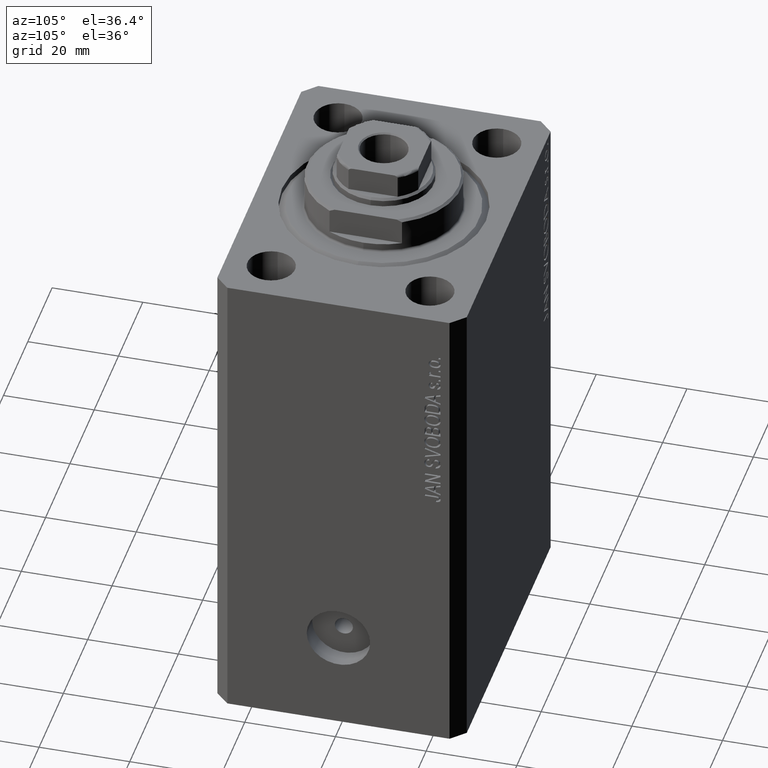
[diagram: clean part render]
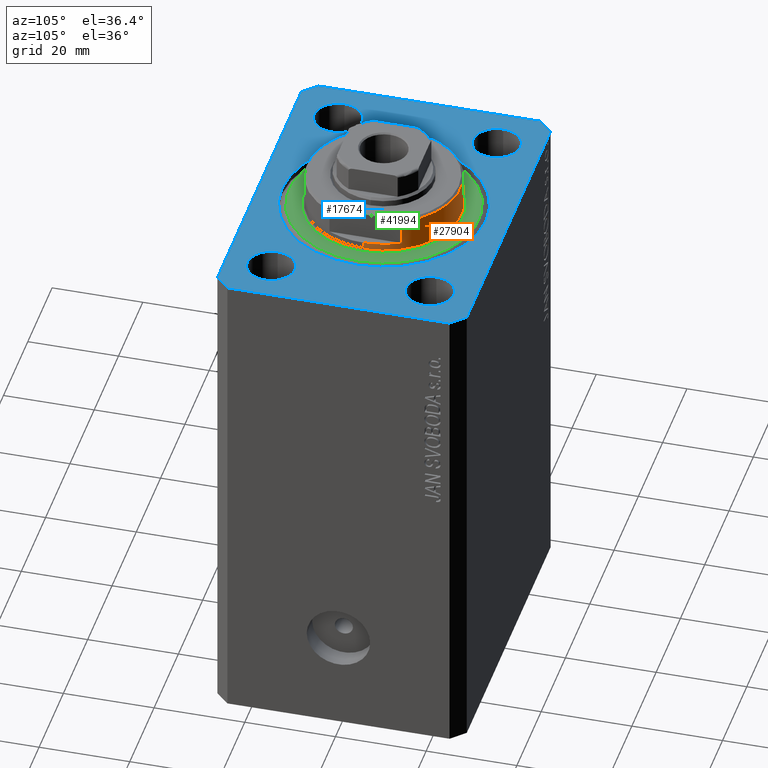
[diagram: same view with three faces highlighted in distinct colors, each labeled with its STEP entity id]
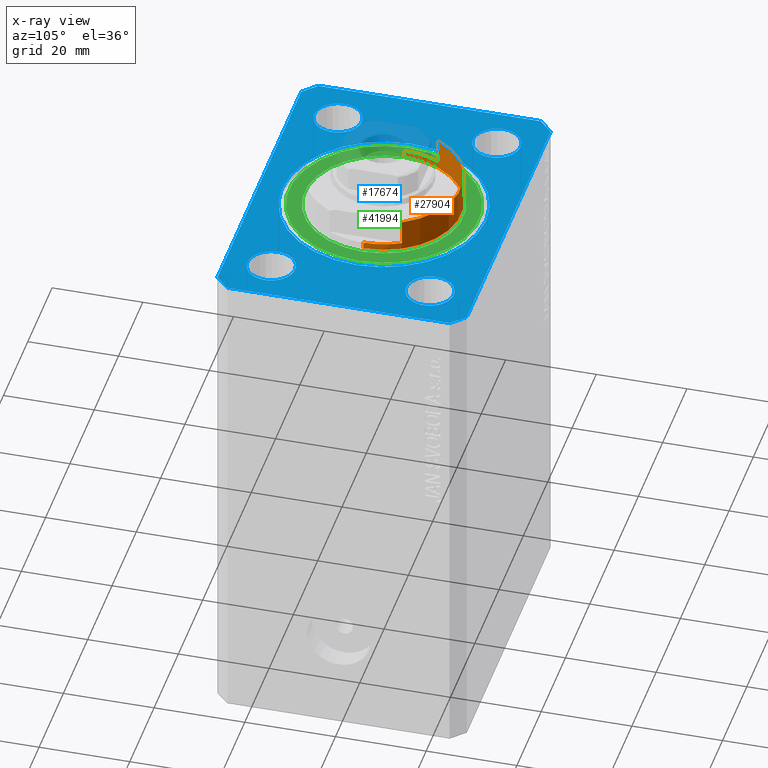
[diagram: x-ray of the same camera — body ghosted, the three highlighted faces saturated]
A machine part, auxiliary view with three faces highlighted in distinct colors.
The next image is the same camera in x-ray (body ghosted, the three faces saturated) — at least one of them is partly hidden behind the body in this view.
Their STEP definitions:

[orange] entity #27904 — the highlighted cylindrical surface (partial cylindrical patch) has radius 17 mm, axis along (0, 0, -1).
#700 = VERTEX_POINT ( 'NONE', #11118 ) ;
#925 = ORIENTED_EDGE ( 'NONE', *, *, #23549, .F. ) ;
#1497 = VECTOR ( 'NONE', #14280, 1000.000000000000000 ) ;
#1714 = EDGE_CURVE ( 'NONE', #21630, #42037, #24091, .T. ) ;
#1963 = DIRECTION ( 'NONE',  ( 0.000000000000000000, 0.000000000000000000, -1.000000000000000000 ) ) ;
#2154 = EDGE_CURVE ( 'NONE', #13236, #21630, #42848, .T. ) ;
#3952 = EDGE_CURVE ( 'NONE', #13148, #13438, #13897, .T. ) ;
#4649 = CARTESIAN_POINT ( 'NONE',  ( 17.00000000000000000, 0.000000000000000000, -2.000000000000000000 ) ) ;
#5223 = DIRECTION ( 'NONE',  ( 1.000000000000000000, 0.000000000000000000, 0.000000000000000000 ) ) ;
#5777 = CIRCLE ( 'NONE', #10077, 17.00000000000000000 ) ;
#7152 = AXIS2_PLACEMENT_3D ( 'NONE', #15820, #19444, #5223 ) ;
#7192 = AXIS2_PLACEMENT_3D ( 'NONE', #14697, #10644, #18548 ) ;
#8561 = VERTEX_POINT ( 'NONE', #4649 ) ;
#9347 = CIRCLE ( 'NONE', #34536, 17.00000000000000000 ) ;
#9932 = EDGE_CURVE ( 'NONE', #13236, #12335, #9942, .T. ) ;
#9942 = LINE ( 'NONE', #40649, #21331 ) ;
#10077 = AXIS2_PLACEMENT_3D ( 'NONE', #21434, #35169, #10368 ) ;
#10368 = DIRECTION ( 'NONE',  ( -1.000000000000000000, 0.000000000000000000, 0.000000000000000000 ) ) ;
#10430 = CARTESIAN_POINT ( 'NONE',  ( 0.000000000000000000, 0.000000000000000000, -7.500000000000007105 ) ) ;
#10644 = DIRECTION ( 'NONE',  ( -0.000000000000000000, -0.000000000000000000, 1.000000000000000000 ) ) ;
#10905 = LINE ( 'NONE', #28281, #1497 ) ;
#11118 = CARTESIAN_POINT ( 'NONE',  ( 17.00000000000000000, 0.000000000000000000, -0.5000000000000004441 ) ) ;
#11146 = AXIS2_PLACEMENT_3D ( 'NONE', #10430, #34132, #13387 ) ;
#12335 = VERTEX_POINT ( 'NONE', #43580 ) ;
#13148 = VERTEX_POINT ( 'NONE', #30281 ) ;
#13236 = VERTEX_POINT ( 'NONE', #29842 ) ;
#13387 = DIRECTION ( 'NONE',  ( -1.000000000000000000, 0.000000000000000000, 0.000000000000000000 ) ) ;
#13438 = VERTEX_POINT ( 'NONE', #42419 ) ;
#13897 = LINE ( 'NONE', #37587, #32086 ) ;
#14280 = DIRECTION ( 'NONE',  ( -0.000000000000000000, -0.000000000000000000, 1.000000000000000000 ) ) ;
#14697 = CARTESIAN_POINT ( 'NONE',  ( 0.000000000000000000, 0.000000000000000000, -8.000000000000000000 ) ) ;
#15820 = CARTESIAN_POINT ( 'NONE',  ( 0.000000000000000000, 0.000000000000000000, -0.5000000000000004441 ) ) ;
#16840 = ORIENTED_EDGE ( 'NONE', *, *, #41952, .T. ) ;
#17876 = ORIENTED_EDGE ( 'NONE', *, *, #3952, .T. ) ;
#18548 = DIRECTION ( 'NONE',  ( 1.000000000000000000, 0.000000000000000000, 0.000000000000000000 ) ) ;
#19444 = DIRECTION ( 'NONE',  ( -0.000000000000000000, -0.000000000000000000, -1.000000000000000000 ) ) ;
#20273 = DIRECTION ( 'NONE',  ( -0.000000000000000000, -0.000000000000000000, 1.000000000000000000 ) ) ;
#20661 = ORIENTED_EDGE ( 'NONE', *, *, #2154, .T. ) ;
#21331 = VECTOR ( 'NONE', #40198, 1000.000000000000000 ) ;
#21434 = CARTESIAN_POINT ( 'NONE',  ( 0.000000000000000000, 0.000000000000000000, -2.000000000000000000 ) ) ;
#21554 = ORIENTED_EDGE ( 'NONE', *, *, #21931, .F. ) ;
#21630 = VERTEX_POINT ( 'NONE', #28249 ) ;
#21931 = EDGE_CURVE ( 'NONE', #13148, #42037, #5777, .T. ) ;
#22498 = CARTESIAN_POINT ( 'NONE',  ( 0.000000000000000000, 0.000000000000000000, -2.000000000000000000 ) ) ;
#23549 = EDGE_CURVE ( 'NONE', #8561, #700, #10905, .T. ) ;
#23656 = CARTESIAN_POINT ( 'NONE',  ( -15.00000000000000000, 8.000000000000001776, -8.000000000000000000 ) ) ;
#24091 = LINE ( 'NONE', #23656, #26310 ) ;
#25431 = EDGE_CURVE ( 'NONE', #12335, #8561, #9347, .T. ) ;
#26310 = VECTOR ( 'NONE', #20273, 1000.000000000000000 ) ;
#26647 = CIRCLE ( 'NONE', #7152, 17.00000000000000000 ) ;
#27904 = ADVANCED_FACE ( 'NONE', ( #38382 ), #28690, .T. ) ;
#28249 = CARTESIAN_POINT ( 'NONE',  ( -15.00000000000000000, 8.000000000000001776, -7.500000000000007105 ) ) ;
#28281 = CARTESIAN_POINT ( 'NONE',  ( 17.00000000000000000, 0.000000000000000000, -8.000000000000000000 ) ) ;
#28690 = CYLINDRICAL_SURFACE ( 'NONE', #7192, 17.00000000000000000 ) ;
#29842 = CARTESIAN_POINT ( 'NONE',  ( 15.00000000000000000, 8.000000000000001776, -7.500000000000007105 ) ) ;
#30281 = CARTESIAN_POINT ( 'NONE',  ( -17.00000000000000000, 2.081899558550500280E-15, -2.000000000000000000 ) ) ;
#31045 = DIRECTION ( 'NONE',  ( -0.000000000000000000, -0.000000000000000000, 1.000000000000000000 ) ) ;
#32086 = VECTOR ( 'NONE', #31045, 1000.000000000000000 ) ;
#32415 = DIRECTION ( 'NONE',  ( -1.000000000000000000, 0.000000000000000000, 0.000000000000000000 ) ) ;
#34132 = DIRECTION ( 'NONE',  ( 0.000000000000000000, 0.000000000000000000, 1.000000000000000000 ) ) ;
#34536 = AXIS2_PLACEMENT_3D ( 'NONE', #22498, #1963, #32415 ) ;
#34871 = ORIENTED_EDGE ( 'NONE', *, *, #9932, .F. ) ;
#35169 = DIRECTION ( 'NONE',  ( 0.000000000000000000, 0.000000000000000000, -1.000000000000000000 ) ) ;
#36466 = ORIENTED_EDGE ( 'NONE', *, *, #25431, .F. ) ;
#37587 = CARTESIAN_POINT ( 'NONE',  ( -17.00000000000000000, 2.081899558550500280E-15, -8.000000000000000000 ) ) ;
#38382 = FACE_OUTER_BOUND ( 'NONE', #41582, .T. ) ;
#40198 = DIRECTION ( 'NONE',  ( -0.000000000000000000, -0.000000000000000000, 1.000000000000000000 ) ) ;
#40649 = CARTESIAN_POINT ( 'NONE',  ( 15.00000000000000000, 8.000000000000001776, -8.000000000000000000 ) ) ;
#40874 = ORIENTED_EDGE ( 'NONE', *, *, #1714, .T. ) ;
#41582 = EDGE_LOOP ( 'NONE', ( #21554, #17876, #16840, #925, #36466, #34871, #20661, #40874 ) ) ;
#41952 = EDGE_CURVE ( 'NONE', #13438, #700, #26647, .T. ) ;
#42037 = VERTEX_POINT ( 'NONE', #44024 ) ;
#42419 = CARTESIAN_POINT ( 'NONE',  ( -17.00000000000000000, 2.081899558550500280E-15, -0.5000000000000004441 ) ) ;
#42848 = CIRCLE ( 'NONE', #11146, 17.00000000000000000 ) ;
#43580 = CARTESIAN_POINT ( 'NONE',  ( 14.99999999999999645, 8.000000000000003553, -2.000000000000000000 ) ) ;
#44024 = CARTESIAN_POINT ( 'NONE',  ( -14.99999999999999645, 8.000000000000003553, -2.000000000000000000 ) ) ;

[blue] entity #17674 — the highlighted planar face has unit normal (0, 0, 1).
#95 = DIRECTION ( 'NONE',  ( 1.000000000000000000, 0.000000000000000000, 0.000000000000000000 ) ) ;
#458 = DIRECTION ( 'NONE',  ( 0.000000000000000000, 0.000000000000000000, 1.000000000000000000 ) ) ;
#759 = LINE ( 'NONE', #24228, #34954 ) ;
#1478 = CARTESIAN_POINT ( 'NONE',  ( 0.000000000000000000, 0.000000000000000000, 0.000000000000000000 ) ) ;
#1609 = CIRCLE ( 'NONE', #34028, 5.250000000000000888 ) ;
#1947 = CIRCLE ( 'NONE', #19962, 22.50000000000000355 ) ;
#2594 = DIRECTION ( 'NONE',  ( 1.000000000000000000, 0.000000000000000000, 0.000000000000000000 ) ) ;
#2710 = LINE ( 'NONE', #13067, #37645 ) ;
#2741 = DIRECTION ( 'NONE',  ( 0.000000000000000000, 0.000000000000000000, 1.000000000000000000 ) ) ;
#2877 = CARTESIAN_POINT ( 'NONE',  ( 37.49999999999999289, -24.50000000000000000, 0.000000000000000000 ) ) ;
#2880 = CARTESIAN_POINT ( 'NONE',  ( -22.50000000000000355, 2.755455298081545172E-15, 0.000000000000000000 ) ) ;
#3143 = EDGE_CURVE ( 'NONE', #33978, #5184, #29615, .T. ) ;
#3175 = VERTEX_POINT ( 'NONE', #9743 ) ;
#3382 = EDGE_CURVE ( 'NONE', #13673, #7377, #42881, .T. ) ;
#3743 = CARTESIAN_POINT ( 'NONE',  ( -34.49999999999999289, 27.50000000000000000, 0.000000000000000000 ) ) ;
#4441 = LINE ( 'NONE', #24089, #36054 ) ;
#4450 = DIRECTION ( 'NONE',  ( 1.000000000000000000, 0.000000000000000000, 0.000000000000000000 ) ) ;
#4506 = CARTESIAN_POINT ( 'NONE',  ( 34.49999999999999289, -27.49999999999999645, 0.000000000000000000 ) ) ;
#4599 = ORIENTED_EDGE ( 'NONE', *, *, #7939, .T. ) ;
#4741 = DIRECTION ( 'NONE',  ( 1.000000000000000000, 0.000000000000000000, 0.000000000000000000 ) ) ;
#4859 = DIRECTION ( 'NONE',  ( 0.7071067811865474617, 0.7071067811865474617, 0.000000000000000000 ) ) ;
#4860 = VERTEX_POINT ( 'NONE', #26648 ) ;
#5184 = VERTEX_POINT ( 'NONE', #23208 ) ;
#5574 = VERTEX_POINT ( 'NONE', #32071 ) ;
#5861 = EDGE_CURVE ( 'NONE', #10892, #19267, #22799, .T. ) ;
#6273 = VERTEX_POINT ( 'NONE', #16167 ) ;
#6759 = DIRECTION ( 'NONE',  ( 1.000000000000000000, 0.000000000000000000, 0.000000000000000000 ) ) ;
#7223 = CARTESIAN_POINT ( 'NONE',  ( 0.000000000000000000, 0.000000000000000000, 0.000000000000000000 ) ) ;
#7377 = VERTEX_POINT ( 'NONE', #2880 ) ;
#7383 = VERTEX_POINT ( 'NONE', #12804 ) ;
#7562 = CARTESIAN_POINT ( 'NONE',  ( 34.49999999999999289, -27.49999999999999645, 0.000000000000000000 ) ) ;
#7816 = AXIS2_PLACEMENT_3D ( 'NONE', #13877, #30169, #43921 ) ;
#7820 = DIRECTION ( 'NONE',  ( 0.7071067811865483499, -0.7071067811865466846, 0.000000000000000000 ) ) ;
#7939 = EDGE_CURVE ( 'NONE', #6273, #29166, #759, .T. ) ;
#8190 = CARTESIAN_POINT ( 'NONE',  ( 27.49999999999999289, -17.50000000000000000, 0.000000000000000000 ) ) ;
#8415 = DIRECTION ( 'NONE',  ( 1.000000000000000000, 0.000000000000000000, 0.000000000000000000 ) ) ;
#8686 = FACE_OUTER_BOUND ( 'NONE', #29239, .T. ) ;
#8907 = FACE_BOUND ( 'NONE', #30789, .T. ) ;
#9033 = AXIS2_PLACEMENT_3D ( 'NONE', #7223, #20995, #34734 ) ;
#9274 = CARTESIAN_POINT ( 'NONE',  ( -27.49999999999999289, -17.50000000000000000, 0.000000000000000000 ) ) ;
#9735 = DIRECTION ( 'NONE',  ( 1.000000000000000000, 0.000000000000000000, 0.000000000000000000 ) ) ;
#9743 = CARTESIAN_POINT ( 'NONE',  ( 22.25000000000000000, 17.49999999999999289, 0.000000000000000000 ) ) ;
#10650 = CIRCLE ( 'NONE', #37321, 5.250000000000000888 ) ;
#10892 = VERTEX_POINT ( 'NONE', #23454 ) ;
#11374 = CARTESIAN_POINT ( 'NONE',  ( 32.75000000000000000, 17.49999999999999289, 0.000000000000000000 ) ) ;
#11402 = DIRECTION ( 'NONE',  ( 1.000000000000000000, 0.000000000000000000, 0.000000000000000000 ) ) ;
#11952 = DIRECTION ( 'NONE',  ( 0.000000000000000000, 0.000000000000000000, 1.000000000000000000 ) ) ;
#12275 = EDGE_CURVE ( 'NONE', #7377, #13673, #1947, .T. ) ;
#12534 = VERTEX_POINT ( 'NONE', #32479 ) ;
#12804 = CARTESIAN_POINT ( 'NONE',  ( -37.49999999999999289, 24.50000000000000000, 0.000000000000000000 ) ) ;
#12887 = CIRCLE ( 'NONE', #38068, 5.250000000000000888 ) ;
#12916 = EDGE_LOOP ( 'NONE', ( #42258, #37725 ) ) ;
#13067 = CARTESIAN_POINT ( 'NONE',  ( -37.49999999999999289, 24.50000000000000000, 0.000000000000000000 ) ) ;
#13673 = VERTEX_POINT ( 'NONE', #15054 ) ;
#13877 = CARTESIAN_POINT ( 'NONE',  ( -27.50000000000000000, 17.49999999999999645, 0.000000000000000000 ) ) ;
#13909 = EDGE_LOOP ( 'NONE', ( #16038, #32678 ) ) ;
#13947 = CARTESIAN_POINT ( 'NONE',  ( -22.24999999999999289, -17.50000000000000000, 0.000000000000000000 ) ) ;
#15054 = CARTESIAN_POINT ( 'NONE',  ( 22.50000000000000355, 0.000000000000000000, 0.000000000000000000 ) ) ;
#15091 = CARTESIAN_POINT ( 'NONE',  ( 22.24999999999999289, -17.50000000000000000, 0.000000000000000000 ) ) ;
#15381 = AXIS2_PLACEMENT_3D ( 'NONE', #8190, #21973, #8415 ) ;
#15562 = CARTESIAN_POINT ( 'NONE',  ( -27.50000000000000000, 17.49999999999999645, 0.000000000000000000 ) ) ;
#15613 = CARTESIAN_POINT ( 'NONE',  ( 0.000000000000000000, 0.000000000000000000, 0.000000000000000000 ) ) ;
#15669 = DIRECTION ( 'NONE',  ( 0.000000000000000000, 0.000000000000000000, 1.000000000000000000 ) ) ;
#16038 = ORIENTED_EDGE ( 'NONE', *, *, #38765, .F. ) ;
#16147 = LINE ( 'NONE', #18866, #28286 ) ;
#16167 = CARTESIAN_POINT ( 'NONE',  ( -34.49999999999998579, -27.49999999999999645, 0.000000000000000000 ) ) ;
#16859 = CIRCLE ( 'NONE', #37740, 5.250000000000000888 ) ;
#17058 = EDGE_CURVE ( 'NONE', #19267, #10892, #10650, .T. ) ;
#17512 = EDGE_CURVE ( 'NONE', #40837, #5574, #18659, .T. ) ;
#17674 = ADVANCED_FACE ( 'NONE', ( #32598, #8907, #19524, #29216, #22682, #8686 ), #36415, .T. ) ;
#18526 = EDGE_CURVE ( 'NONE', #3175, #42897, #12887, .T. ) ;
#18659 = CIRCLE ( 'NONE', #7816, 5.250000000000000888 ) ;
#18773 = CARTESIAN_POINT ( 'NONE',  ( 34.50000000000056843, 27.50000000000000000, 0.000000000000000000 ) ) ;
#18866 = CARTESIAN_POINT ( 'NONE',  ( 37.50000000000051870, 24.49999999999995381, 0.000000000000000000 ) ) ;
#19267 = VERTEX_POINT ( 'NONE', #13947 ) ;
#19524 = FACE_BOUND ( 'NONE', #22186, .T. ) ;
#19958 = ORIENTED_EDGE ( 'NONE', *, *, #32516, .T. ) ;
#19962 = AXIS2_PLACEMENT_3D ( 'NONE', #15613, #22842, #9735 ) ;
#20875 = ORIENTED_EDGE ( 'NONE', *, *, #39507, .T. ) ;
#20995 = DIRECTION ( 'NONE',  ( 0.000000000000000000, 0.000000000000000000, 1.000000000000000000 ) ) ;
#21058 = CARTESIAN_POINT ( 'NONE',  ( 27.49999999999999289, -17.50000000000000000, 0.000000000000000000 ) ) ;
#21973 = DIRECTION ( 'NONE',  ( 0.000000000000000000, 0.000000000000000000, 1.000000000000000000 ) ) ;
#22186 = EDGE_LOOP ( 'NONE', ( #28758, #33152 ) ) ;
#22682 = FACE_BOUND ( 'NONE', #13909, .T. ) ;
#22799 = CIRCLE ( 'NONE', #27108, 5.250000000000000888 ) ;
#22842 = DIRECTION ( 'NONE',  ( 0.000000000000000000, 0.000000000000000000, 1.000000000000000000 ) ) ;
#23208 = CARTESIAN_POINT ( 'NONE',  ( 37.50000000000051870, 24.49999999999995381, 0.000000000000000000 ) ) ;
#23454 = CARTESIAN_POINT ( 'NONE',  ( -32.74999999999999289, -17.50000000000000000, 0.000000000000000000 ) ) ;
#23839 = EDGE_CURVE ( 'NONE', #24223, #7383, #34329, .T. ) ;
#23983 = AXIS2_PLACEMENT_3D ( 'NONE', #31969, #15669, #4450 ) ;
#24089 = CARTESIAN_POINT ( 'NONE',  ( -37.49999999999999289, -24.50000000000000000, 0.000000000000000000 ) ) ;
#24223 = VERTEX_POINT ( 'NONE', #3743 ) ;
#24228 = CARTESIAN_POINT ( 'NONE',  ( -34.49999999999998579, -27.49999999999999645, 0.000000000000000000 ) ) ;
#24983 = ORIENTED_EDGE ( 'NONE', *, *, #30400, .T. ) ;
#25338 = ORIENTED_EDGE ( 'NONE', *, *, #5861, .F. ) ;
#26648 = CARTESIAN_POINT ( 'NONE',  ( -37.49999999999999289, -24.50000000000000000, 0.000000000000000000 ) ) ;
#27108 = AXIS2_PLACEMENT_3D ( 'NONE', #9274, #2741, #6759 ) ;
#28286 = VECTOR ( 'NONE', #36431, 1000.000000000000114 ) ;
#28377 = VERTEX_POINT ( 'NONE', #15091 ) ;
#28466 = LINE ( 'NONE', #18773, #41285 ) ;
#28556 = CARTESIAN_POINT ( 'NONE',  ( 27.50000000000000000, 17.49999999999999289, 0.000000000000000000 ) ) ;
#28675 = CARTESIAN_POINT ( 'NONE',  ( -34.49999999999999289, 27.50000000000000000, 0.000000000000000000 ) ) ;
#28758 = ORIENTED_EDGE ( 'NONE', *, *, #35596, .F. ) ;
#28768 = DIRECTION ( 'NONE',  ( 1.000000000000000000, 0.000000000000000000, -0.000000000000000000 ) ) ;
#29166 = VERTEX_POINT ( 'NONE', #4506 ) ;
#29216 = FACE_BOUND ( 'NONE', #41874, .T. ) ;
#29239 = EDGE_LOOP ( 'NONE', ( #19958, #35900, #40962, #33574, #4599, #20875, #36357, #24983 ) ) ;
#29615 = LINE ( 'NONE', #43367, #35683 ) ;
#30169 = DIRECTION ( 'NONE',  ( 0.000000000000000000, 0.000000000000000000, 1.000000000000000000 ) ) ;
#30308 = VERTEX_POINT ( 'NONE', #41204 ) ;
#30400 = EDGE_CURVE ( 'NONE', #5184, #30308, #16147, .T. ) ;
#30726 = CARTESIAN_POINT ( 'NONE',  ( -32.75000000000000000, 17.49999999999999645, 0.000000000000000000 ) ) ;
#30789 = EDGE_LOOP ( 'NONE', ( #39680, #25338 ) ) ;
#30980 = DIRECTION ( 'NONE',  ( 0.000000000000000000, 0.000000000000000000, 1.000000000000000000 ) ) ;
#31969 = CARTESIAN_POINT ( 'NONE',  ( 27.50000000000000000, 17.49999999999999289, 0.000000000000000000 ) ) ;
#32071 = CARTESIAN_POINT ( 'NONE',  ( -22.25000000000000000, 17.49999999999999645, 0.000000000000000000 ) ) ;
#32479 = CARTESIAN_POINT ( 'NONE',  ( 32.74999999999999289, -17.50000000000000000, 0.000000000000000000 ) ) ;
#32516 = EDGE_CURVE ( 'NONE', #30308, #24223, #28466, .T. ) ;
#32598 = FACE_BOUND ( 'NONE', #12916, .T. ) ;
#32678 = ORIENTED_EDGE ( 'NONE', *, *, #17512, .F. ) ;
#32824 = DIRECTION ( 'NONE',  ( 0.000000000000000000, 0.000000000000000000, 1.000000000000000000 ) ) ;
#33152 = ORIENTED_EDGE ( 'NONE', *, *, #40677, .F. ) ;
#33495 = CARTESIAN_POINT ( 'NONE',  ( -27.49999999999999289, -17.50000000000000000, 0.000000000000000000 ) ) ;
#33574 = ORIENTED_EDGE ( 'NONE', *, *, #42507, .T. ) ;
#33978 = VERTEX_POINT ( 'NONE', #2877 ) ;
#34028 = AXIS2_PLACEMENT_3D ( 'NONE', #21058, #30980, #95 ) ;
#34329 = LINE ( 'NONE', #28675, #40402 ) ;
#34734 = DIRECTION ( 'NONE',  ( 1.000000000000000000, 0.000000000000000000, 0.000000000000000000 ) ) ;
#34954 = VECTOR ( 'NONE', #37747, 1000.000000000000000 ) ;
#35596 = EDGE_CURVE ( 'NONE', #12534, #28377, #1609, .T. ) ;
#35683 = VECTOR ( 'NONE', #43145, 1000.000000000000000 ) ;
#35900 = ORIENTED_EDGE ( 'NONE', *, *, #23839, .T. ) ;
#36054 = VECTOR ( 'NONE', #7820, 1000.000000000000000 ) ;
#36357 = ORIENTED_EDGE ( 'NONE', *, *, #3143, .T. ) ;
#36415 = PLANE ( 'NONE',  #37343 ) ;
#36431 = DIRECTION ( 'NONE',  ( -0.7071067811865364705, 0.7071067811865584529, 0.000000000000000000 ) ) ;
#36952 = CIRCLE ( 'NONE', #23983, 5.250000000000000888 ) ;
#37081 = CIRCLE ( 'NONE', #15381, 5.250000000000000888 ) ;
#37321 = AXIS2_PLACEMENT_3D ( 'NONE', #33495, #458, #2594 ) ;
#37343 = AXIS2_PLACEMENT_3D ( 'NONE', #1478, #32824, #28768 ) ;
#37645 = VECTOR ( 'NONE', #43419, 1000.000000000000000 ) ;
#37725 = ORIENTED_EDGE ( 'NONE', *, *, #12275, .F. ) ;
#37740 = AXIS2_PLACEMENT_3D ( 'NONE', #15562, #11952, #4741 ) ;
#37747 = DIRECTION ( 'NONE',  ( 1.000000000000000000, 0.000000000000000000, 0.000000000000000000 ) ) ;
#38054 = EDGE_CURVE ( 'NONE', #7383, #4860, #2710, .T. ) ;
#38068 = AXIS2_PLACEMENT_3D ( 'NONE', #28556, #42317, #11402 ) ;
#38095 = EDGE_CURVE ( 'NONE', #42897, #3175, #36952, .T. ) ;
#38463 = LINE ( 'NONE', #7562, #43565 ) ;
#38765 = EDGE_CURVE ( 'NONE', #5574, #40837, #16859, .T. ) ;
#38827 = ORIENTED_EDGE ( 'NONE', *, *, #38095, .F. ) ;
#39507 = EDGE_CURVE ( 'NONE', #29166, #33978, #38463, .T. ) ;
#39680 = ORIENTED_EDGE ( 'NONE', *, *, #17058, .F. ) ;
#40402 = VECTOR ( 'NONE', #42216, 1000.000000000000000 ) ;
#40677 = EDGE_CURVE ( 'NONE', #28377, #12534, #37081, .T. ) ;
#40837 = VERTEX_POINT ( 'NONE', #30726 ) ;
#40962 = ORIENTED_EDGE ( 'NONE', *, *, #38054, .T. ) ;
#41204 = CARTESIAN_POINT ( 'NONE',  ( 34.50000000000056843, 27.50000000000000000, 0.000000000000000000 ) ) ;
#41285 = VECTOR ( 'NONE', #42004, 1000.000000000000000 ) ;
#41874 = EDGE_LOOP ( 'NONE', ( #38827, #44607 ) ) ;
#42004 = DIRECTION ( 'NONE',  ( -1.000000000000000000, 0.000000000000000000, 0.000000000000000000 ) ) ;
#42216 = DIRECTION ( 'NONE',  ( -0.7071067811865471286, -0.7071067811865479058, 0.000000000000000000 ) ) ;
#42258 = ORIENTED_EDGE ( 'NONE', *, *, #3382, .F. ) ;
#42317 = DIRECTION ( 'NONE',  ( 0.000000000000000000, 0.000000000000000000, 1.000000000000000000 ) ) ;
#42507 = EDGE_CURVE ( 'NONE', #4860, #6273, #4441, .T. ) ;
#42881 = CIRCLE ( 'NONE', #9033, 22.50000000000000355 ) ;
#42897 = VERTEX_POINT ( 'NONE', #11374 ) ;
#43145 = DIRECTION ( 'NONE',  ( 1.076236605503979380E-14, 1.000000000000000000, 0.000000000000000000 ) ) ;
#43367 = CARTESIAN_POINT ( 'NONE',  ( 37.49999999999999289, -24.50000000000000000, 0.000000000000000000 ) ) ;
#43419 = DIRECTION ( 'NONE',  ( 0.000000000000000000, -1.000000000000000000, 0.000000000000000000 ) ) ;
#43565 = VECTOR ( 'NONE', #4859, 1000.000000000000114 ) ;
#43921 = DIRECTION ( 'NONE',  ( 1.000000000000000000, 0.000000000000000000, 0.000000000000000000 ) ) ;
#44607 = ORIENTED_EDGE ( 'NONE', *, *, #18526, .F. ) ;

[green] entity #41994 — the highlighted planar face has unit normal (0, 0, -1).
#1270 = ORIENTED_EDGE ( 'NONE', *, *, #21817, .T. ) ;
#1850 = PLANE ( 'NONE',  #41758 ) ;
#1978 = CIRCLE ( 'NONE', #32956, 17.50000000000000000 ) ;
#2009 = DIRECTION ( 'NONE',  ( 1.000000000000000000, 0.000000000000000000, 0.000000000000000000 ) ) ;
#2184 = ORIENTED_EDGE ( 'NONE', *, *, #27166, .T. ) ;
#3077 = ORIENTED_EDGE ( 'NONE', *, *, #14121, .T. ) ;
#4310 = CIRCLE ( 'NONE', #23085, 20.99999999999998934 ) ;
#5485 = VERTEX_POINT ( 'NONE', #26934 ) ;
#7195 = CIRCLE ( 'NONE', #36741, 17.50000000000000000 ) ;
#9052 = DIRECTION ( 'NONE',  ( 0.000000000000000000, 0.000000000000000000, 1.000000000000000000 ) ) ;
#9659 = CARTESIAN_POINT ( 'NONE',  ( 0.000000000000000000, 0.000000000000000000, 0.000000000000000000 ) ) ;
#11062 = DIRECTION ( 'NONE',  ( 1.000000000000000000, 0.000000000000000000, 0.000000000000000000 ) ) ;
#11259 = DIRECTION ( 'NONE',  ( 0.000000000000000000, 0.000000000000000000, 1.000000000000000000 ) ) ;
#12557 = EDGE_LOOP ( 'NONE', ( #23226, #3077 ) ) ;
#14121 = EDGE_CURVE ( 'NONE', #28956, #40396, #1978, .T. ) ;
#14556 = CARTESIAN_POINT ( 'NONE',  ( 17.50000000000000000, 0.000000000000000000, -2.168404344971008868E-16 ) ) ;
#14638 = CARTESIAN_POINT ( 'NONE',  ( 0.000000000000000000, 0.000000000000000000, 0.000000000000000000 ) ) ;
#15155 = AXIS2_PLACEMENT_3D ( 'NONE', #9659, #37163, #2009 ) ;
#18996 = FACE_BOUND ( 'NONE', #12557, .T. ) ;
#21186 = EDGE_CURVE ( 'NONE', #40396, #28956, #7195, .T. ) ;
#21817 = EDGE_CURVE ( 'NONE', #5485, #44404, #4310, .T. ) ;
#21818 = CARTESIAN_POINT ( 'NONE',  ( 20.99999999999998934, 0.000000000000000000, 0.000000000000000000 ) ) ;
#23085 = AXIS2_PLACEMENT_3D ( 'NONE', #29824, #37231, #33647 ) ;
#23226 = ORIENTED_EDGE ( 'NONE', *, *, #21186, .T. ) ;
#24645 = CARTESIAN_POINT ( 'NONE',  ( -17.50000000000000000, 2.143131898507868643E-15, -2.168404344971008868E-16 ) ) ;
#25033 = DIRECTION ( 'NONE',  ( 1.000000000000000000, 0.000000000000000000, 0.000000000000000000 ) ) ;
#25991 = CARTESIAN_POINT ( 'NONE',  ( 0.000000000000000000, 0.000000000000000000, 0.000000000000000000 ) ) ;
#26934 = CARTESIAN_POINT ( 'NONE',  ( -20.99999999999998934, 2.663606788145492628E-15, 0.000000000000000000 ) ) ;
#27166 = EDGE_CURVE ( 'NONE', #44404, #5485, #32424, .T. ) ;
#28220 = CARTESIAN_POINT ( 'NONE',  ( 0.000000000000000000, 0.000000000000000000, 0.000000000000000000 ) ) ;
#28956 = VERTEX_POINT ( 'NONE', #24645 ) ;
#29824 = CARTESIAN_POINT ( 'NONE',  ( 0.000000000000000000, 0.000000000000000000, 0.000000000000000000 ) ) ;
#32424 = CIRCLE ( 'NONE', #15155, 20.99999999999998934 ) ;
#32750 = FACE_OUTER_BOUND ( 'NONE', #39969, .T. ) ;
#32956 = AXIS2_PLACEMENT_3D ( 'NONE', #28220, #41980, #11062 ) ;
#33647 = DIRECTION ( 'NONE',  ( 1.000000000000000000, 0.000000000000000000, 0.000000000000000000 ) ) ;
#36741 = AXIS2_PLACEMENT_3D ( 'NONE', #14638, #11259, #25033 ) ;
#37163 = DIRECTION ( 'NONE',  ( -0.000000000000000000, -0.000000000000000000, -1.000000000000000000 ) ) ;
#37231 = DIRECTION ( 'NONE',  ( -0.000000000000000000, -0.000000000000000000, -1.000000000000000000 ) ) ;
#39739 = DIRECTION ( 'NONE',  ( 1.000000000000000000, 0.000000000000000000, -0.000000000000000000 ) ) ;
#39969 = EDGE_LOOP ( 'NONE', ( #2184, #1270 ) ) ;
#40396 = VERTEX_POINT ( 'NONE', #14556 ) ;
#41758 = AXIS2_PLACEMENT_3D ( 'NONE', #25991, #9052, #39739 ) ;
#41980 = DIRECTION ( 'NONE',  ( 0.000000000000000000, 0.000000000000000000, 1.000000000000000000 ) ) ;
#41994 = ADVANCED_FACE ( 'NONE', ( #18996, #32750 ), #1850, .F. ) ;
#44404 = VERTEX_POINT ( 'NONE', #21818 ) ;